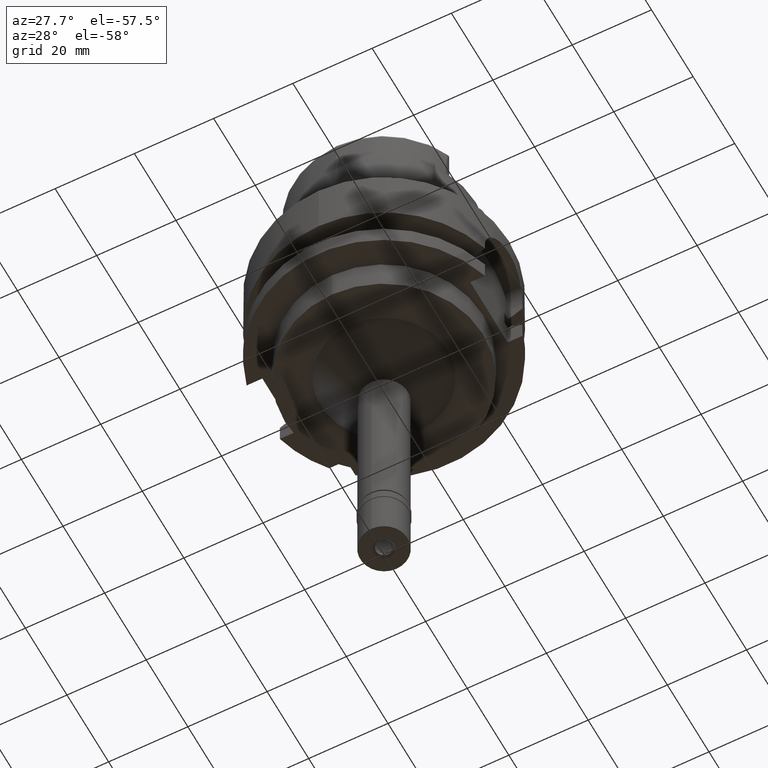
[diagram: clean part render]
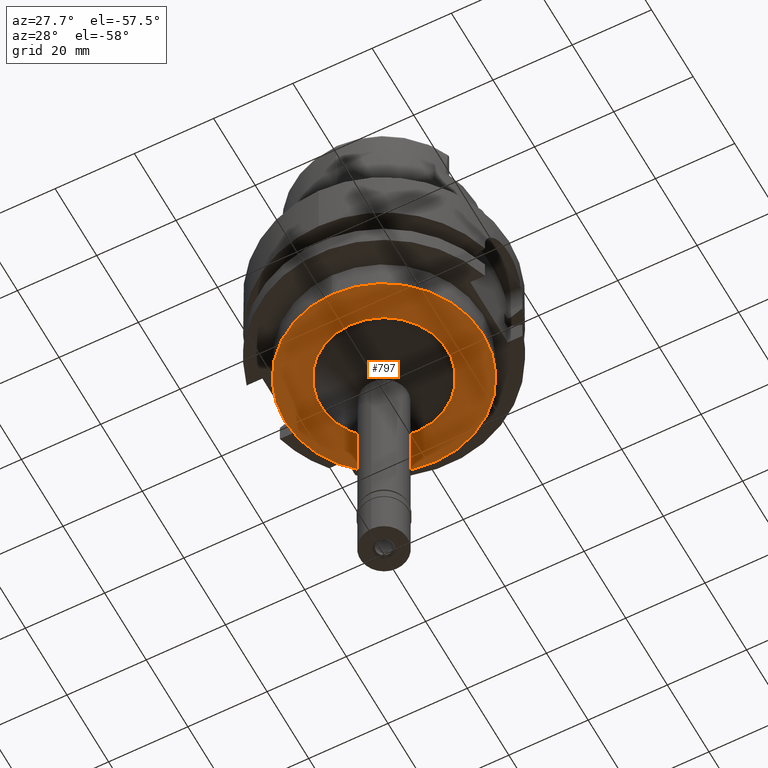
[diagram: same view with one face highlighted and labeled with its STEP entity id]
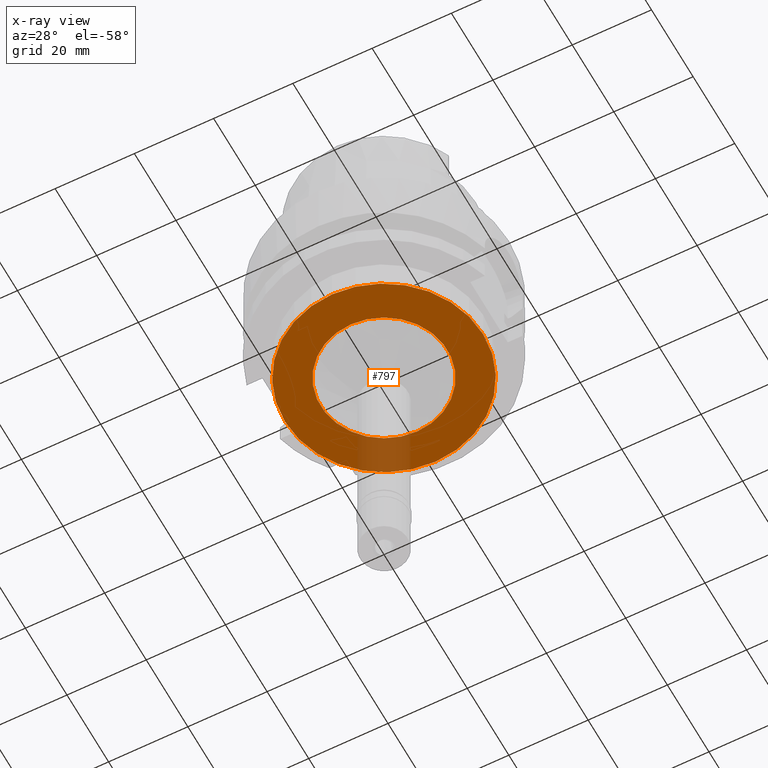
[diagram: x-ray of the same camera — body ghosted, the highlighted face saturated]
A machine part, auxiliary view. The second image highlights one B-rep face of the part: STEP entity #797.
The next image is the same camera in x-ray: the body ghosted, the highlighted face saturated — about 9% of this face is hidden behind the body in this view.
In plain terms, the highlighted planar face has unit normal (0, 0, 1).
Its self-contained STEP definition (entity closure, byte-faithful):
#110 = CARTESIAN_POINT ( 'NONE',  ( 0.0000000000000000000, -25.00000000000000000, -34.00000000000000000 ) ) ;
#236 = EDGE_CURVE ( 'NONE', #4370, #4322, #2626, .T. ) ;
#298 = AXIS2_PLACEMENT_3D ( 'NONE', #4504, #1024, #2750 ) ;
#369 = DIRECTION ( 'NONE',  ( 0.0000000000000000000, 0.0000000000000000000, -1.000000000000000000 ) ) ;
#571 = CIRCLE ( 'NONE', #3615, 25.00000000000000000 ) ;
#575 = DIRECTION ( 'NONE',  ( 0.0000000000000000000, 0.0000000000000000000, 1.000000000000000000 ) ) ;
#797 = ADVANCED_FACE ( 'NONE', ( #4709, #3442 ), #1191, .F. ) ;
#865 = EDGE_CURVE ( 'NONE', #2465, #4713, #571, .T. ) ;
#948 = CARTESIAN_POINT ( 'NONE',  ( 0.0000000000000000000, 0.0000000000000000000, -34.00000000000000000 ) ) ;
#1024 = DIRECTION ( 'NONE',  ( 0.0000000000000000000, 0.0000000000000000000, 1.000000000000000000 ) ) ;
#1153 = AXIS2_PLACEMENT_3D ( 'NONE', #948, #4549, #4267 ) ;
#1185 = ORIENTED_EDGE ( 'NONE', *, *, #865, .F. ) ;
#1191 = PLANE ( 'NONE',  #1153 ) ;
#1249 = ORIENTED_EDGE ( 'NONE', *, *, #3405, .F. ) ;
#1259 = EDGE_CURVE ( 'NONE', #4713, #2465, #2036, .T. ) ;
#1816 = CARTESIAN_POINT ( 'NONE',  ( 0.0000000000000000000, -16.00000000000000000, -34.00000000000000000 ) ) ;
#1989 = DIRECTION ( 'NONE',  ( 0.0000000000000000000, -1.000000000000000000, 0.0000000000000000000 ) ) ;
#2036 = CIRCLE ( 'NONE', #298, 25.00000000000000000 ) ;
#2075 = CARTESIAN_POINT ( 'NONE',  ( 0.0000000000000000000, 25.00000000000000000, -34.00000000000000000 ) ) ;
#2154 = CARTESIAN_POINT ( 'NONE',  ( 0.0000000000000000000, 0.0000000000000000000, -34.00000000000000000 ) ) ;
#2389 = CARTESIAN_POINT ( 'NONE',  ( 0.0000000000000000000, 0.0000000000000000000, -34.00000000000000000 ) ) ;
#2393 = CARTESIAN_POINT ( 'NONE',  ( 0.0000000000000000000, 0.0000000000000000000, -34.00000000000000000 ) ) ;
#2465 = VERTEX_POINT ( 'NONE', #110 ) ;
#2626 = CIRCLE ( 'NONE', #3167, 16.00000000000000000 ) ;
#2750 = DIRECTION ( 'NONE',  ( 0.0000000000000000000, 1.000000000000000000, 0.0000000000000000000 ) ) ;
#2817 = DIRECTION ( 'NONE',  ( 0.0000000000000000000, 1.000000000000000000, 0.0000000000000000000 ) ) ;
#3155 = EDGE_LOOP ( 'NONE', ( #1249, #4730 ) ) ;
#3167 = AXIS2_PLACEMENT_3D ( 'NONE', #2389, #4008, #1989 ) ;
#3405 = EDGE_CURVE ( 'NONE', #4322, #4370, #4214, .T. ) ;
#3442 = FACE_BOUND ( 'NONE', #3155, .T. ) ;
#3500 = AXIS2_PLACEMENT_3D ( 'NONE', #2393, #369, #2817 ) ;
#3615 = AXIS2_PLACEMENT_3D ( 'NONE', #2154, #575, #3848 ) ;
#3848 = DIRECTION ( 'NONE',  ( 0.0000000000000000000, -1.000000000000000000, 0.0000000000000000000 ) ) ;
#3950 = ORIENTED_EDGE ( 'NONE', *, *, #1259, .F. ) ;
#3988 = CARTESIAN_POINT ( 'NONE',  ( 0.0000000000000000000, 16.00000000000000000, -34.00000000000000000 ) ) ;
#4008 = DIRECTION ( 'NONE',  ( 0.0000000000000000000, 0.0000000000000000000, -1.000000000000000000 ) ) ;
#4214 = CIRCLE ( 'NONE', #3500, 16.00000000000000000 ) ;
#4267 = DIRECTION ( 'NONE',  ( 1.000000000000000000, 0.0000000000000000000, 0.0000000000000000000 ) ) ;
#4322 = VERTEX_POINT ( 'NONE', #3988 ) ;
#4370 = VERTEX_POINT ( 'NONE', #1816 ) ;
#4503 = EDGE_LOOP ( 'NONE', ( #3950, #1185 ) ) ;
#4504 = CARTESIAN_POINT ( 'NONE',  ( 0.0000000000000000000, 0.0000000000000000000, -34.00000000000000000 ) ) ;
#4549 = DIRECTION ( 'NONE',  ( 0.0000000000000000000, 0.0000000000000000000, 1.000000000000000000 ) ) ;
#4709 = FACE_OUTER_BOUND ( 'NONE', #4503, .T. ) ;
#4713 = VERTEX_POINT ( 'NONE', #2075 ) ;
#4730 = ORIENTED_EDGE ( 'NONE', *, *, #236, .F. ) ;